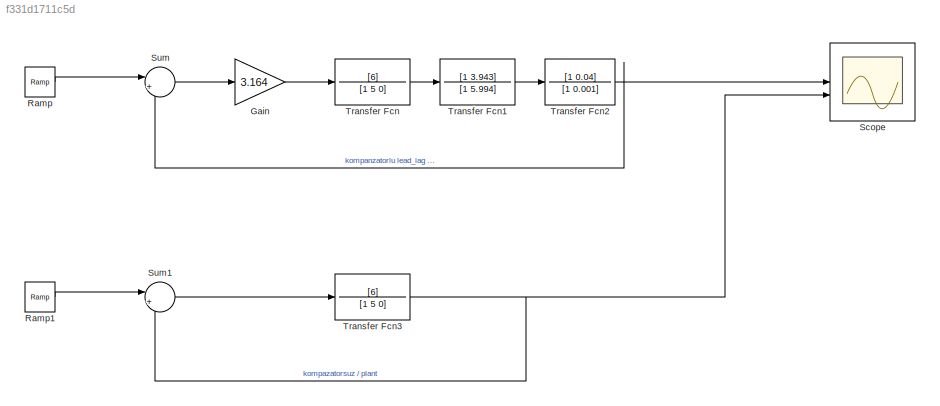
MODEL slx_f331d1711c5d
KIND model
CONFIG AbsTol = auto
CONFIG EnableMultiTasking = off
CONFIG FixedStep = auto
CONFIG MaxStep = auto
CONFIG MinStep = auto
CONFIG RelTol = 1e-3
CONFIG SampleTimeConstraint = Unconstrained
CONFIG SolverName = VariableStepAuto
CONFIG StartTime = 0.0
CONFIG StopTime = 10.0
BLOCK [Gain] Gain
  Gain = 3.164
BLOCK [Reference] Ramp  REF=simulink/Sources/Ramp
  SourceBlock = simulink/Sources/Ramp
  SourceType = Ramp
BLOCK [Reference] Ramp1  REF=simulink/Sources/Ramp
  SourceBlock = simulink/Sources/Ramp
  SourceType = Ramp
BLOCK [Scope] Scope
  Floating = off
  NumInputPorts = 2
  ScopeSpecificationString = Simulink.scopes.TimeScopeBlockCfg('CurrentConfiguration', extmgr.ConfigurationSet(extmgr.Configuration('Core','General UI',true),extmgr.Configuration('Core','Source UI',true),extmgr.Configuration('Sources','WiredSimulink',true),extmgr.Configuration('Visuals','Time Domain',true,'SerializedDisplays',{struct('MinYLimReal','-1.21532','MaxYLimReal','10.93786','YLabelReal','','MinYLimMag','0.00000','Max...<+1667ch>
BLOCK [Sum] Sum
  Inputs = |+-
BLOCK [Sum] Sum1
  Inputs = |+-
BLOCK [TransferFcn] Transfer Fcn
  Denominator = [1 5 0]
  Numerator = [6]
BLOCK [TransferFcn] Transfer Fcn1
  Denominator = [1 5.994]
  Numerator = [1 3.943]
BLOCK [TransferFcn] Transfer Fcn2
  Denominator = [1 0.001]
  Numerator = [1 0.04]
BLOCK [TransferFcn] Transfer Fcn3
  Denominator = [1 5 0]
  Numerator = [6]
LINE Gain:1 -> Transfer Fcn:1
LINE Ramp1:1 -> Sum1:1
LINE Ramp:1 -> Sum:1
LINE Sum1:1 -> Transfer Fcn3:1
LINE Sum:1 -> Gain:1
LINE Transfer Fcn1:1 -> Transfer Fcn2:1
NET Transfer Fcn2:1 -> Scope:1, Sum:2
NET Transfer Fcn3:1 -> Scope:2, Sum1:2
LINE Transfer Fcn:1 -> Transfer Fcn1:1
note: NET lines group one-source signal fan-out (src -> all destinations, sorted); 1:1 wires keep LINE
